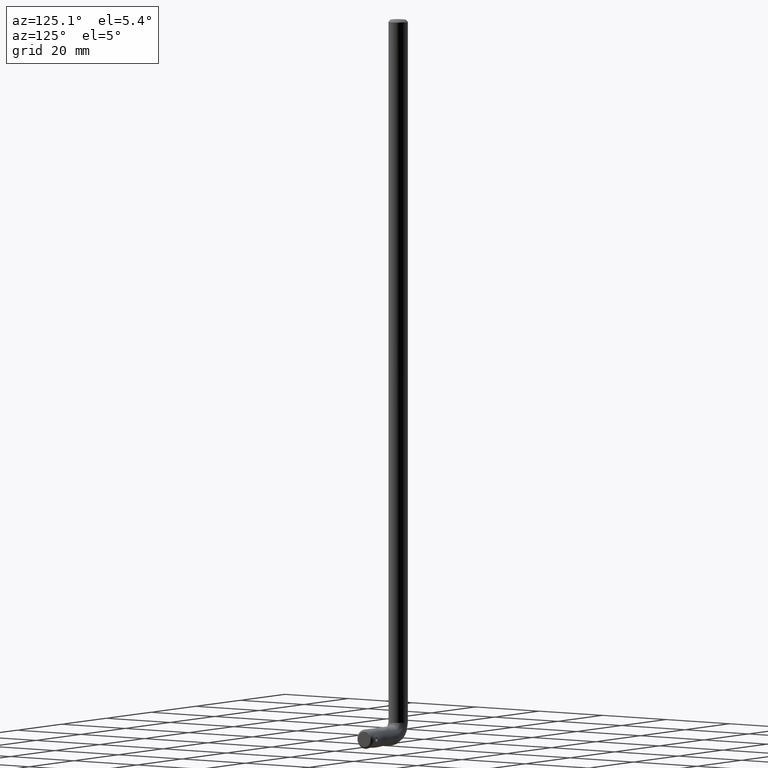
[diagram: clean part render]
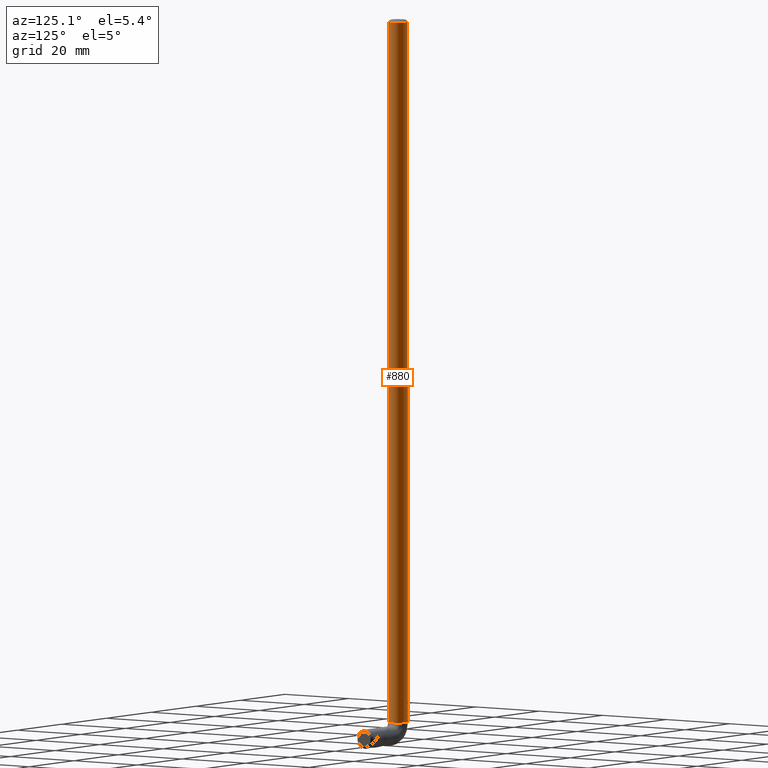
[diagram: same view with one face highlighted and labeled with its STEP entity id]
A machine part, auxiliary view. The second image highlights one B-rep face of the part: STEP entity #880.
In plain terms, the highlighted face is a freeform B-spline surface patch.
Its self-contained STEP definition (entity closure, byte-faithful):
#62=CARTESIAN_POINT('',(0.310320005373382,2.480665534564552,-0.500000000022274));
#63=VERTEX_POINT('',#62);
#64=CARTESIAN_POINT('',(2.500000000000000,0.0,-0.500000000000000));
#65=VERTEX_POINT('',#64);
#66=CARTESIAN_POINT('',(0.310320005373382,2.480665534564552,-0.500000000022274));
#67=CARTESIAN_POINT('',(2.500000000000001,2.206746500068885,-0.500000000000000));
#68=CARTESIAN_POINT('',(2.500000000000000,0.0,-0.500000000000000));
#76=(BOUNDED_CURVE()B_SPLINE_CURVE(2,(#66,#67,#68),.UNSPECIFIED.,.F.,.U.)B_SPLINE_CURVE_WITH_KNOTS((3,3),(0.271473928993958,0.500000000000000),.UNSPECIFIED.)CURVE()GEOMETRIC_REPRESENTATION_ITEM()RATIONAL_B_SPLINE_CURVE((0.954005430229587,0.732265053920995,1.0))REPRESENTATION_ITEM(''));
#77=EDGE_CURVE('',#63,#65,#76,.T.);
#118=CARTESIAN_POINT('',(-0.021816339028422,-2.499904807663032,-0.500000000005070));
#119=VERTEX_POINT('',#118);
#125=CARTESIAN_POINT('',(2.500000000000000,0.0,-0.500000000000000));
#126=CARTESIAN_POINT('',(2.500000000000000,-2.500000000000000,-0.500000000000000));
#127=CARTESIAN_POINT('',(0.0,-2.500000000000000,-0.500000000000000));
#128=CARTESIAN_POINT('',(-0.010908377334208,-2.500000000000000,-0.500000000000000));
#129=CARTESIAN_POINT('',(-0.021816339028422,-2.499904807663032,-0.500000000005070));
#137=(BOUNDED_CURVE()B_SPLINE_CURVE(2,(#125,#126,#127,#128,#129),.UNSPECIFIED.,.F.,.U.)B_SPLINE_CURVE_WITH_KNOTS((3,2,3),(0.500000000000000,0.750000000000000,0.751539894374788),.UNSPECIFIED.)CURVE()GEOMETRIC_REPRESENTATION_ITEM()RATIONAL_B_SPLINE_CURVE((1.0,0.707106781186548,1.0,0.998195901519742,0.996414028008295))REPRESENTATION_ITEM(''));
#138=EDGE_CURVE('',#65,#119,#137,.T.);
#165=CARTESIAN_POINT('',(-2.500000000000000,0.0,-0.500000000000000));
#166=VERTEX_POINT('',#165);
#167=CARTESIAN_POINT('',(-2.500000000000000,0.0,-0.500000000000000));
#168=CARTESIAN_POINT('',(-2.500000000000000,2.500000000000000,-0.500000000000000));
#169=CARTESIAN_POINT('',(0.0,2.500000000000000,-0.500000000000000));
#170=CARTESIAN_POINT('',(0.155762319006782,2.500000000000000,-0.500000000000000));
#171=CARTESIAN_POINT('',(0.310320005373382,2.480665534564552,-0.500000000022274));
#179=(BOUNDED_CURVE()B_SPLINE_CURVE(2,(#167,#168,#169,#170,#171),.UNSPECIFIED.,.F.,.U.)B_SPLINE_CURVE_WITH_KNOTS((3,2,3),(0.0,0.250000000000000,0.271473928993958),.UNSPECIFIED.)CURVE()GEOMETRIC_REPRESENTATION_ITEM()RATIONAL_B_SPLINE_CURVE((1.0,0.707106781186548,1.0,0.974841727265553,0.954005430229587))REPRESENTATION_ITEM(''));
#180=EDGE_CURVE('',#166,#63,#179,.T.);
#182=CARTESIAN_POINT('',(-2.062822166249766,-1.412361395121172,-0.499999999999993));
#183=VERTEX_POINT('',#182);
#184=CARTESIAN_POINT('',(-2.062822166249765,-1.412361395121172,-0.499999999999993));
#185=CARTESIAN_POINT('',(-2.500000000000001,-0.773842012504037,-0.500000000000000));
#186=CARTESIAN_POINT('',(-2.500000000000000,0.0,-0.500000000000000));
#194=(BOUNDED_CURVE()B_SPLINE_CURVE(2,(#184,#185,#186),.UNSPECIFIED.,.F.,.U.)B_SPLINE_CURVE_WITH_KNOTS((3,3),(0.902999117471550,1.0),.UNSPECIFIED.)CURVE()GEOMETRIC_REPRESENTATION_ITEM()RATIONAL_B_SPLINE_CURVE((0.860901032466181,0.886356397153987,1.0))REPRESENTATION_ITEM(''));
#195=EDGE_CURVE('',#183,#166,#194,.T.);
#197=CARTESIAN_POINT('',(-0.541099035157201,-2.440740017730677,-0.499999999999994));
#198=VERTEX_POINT('',#197);
#212=CARTESIAN_POINT('',(-0.021816339028422,-2.499904807663032,-0.500000000005070));
#213=CARTESIAN_POINT('',(-0.284566922393904,-2.497611817995611,-0.500000000000000));
#214=CARTESIAN_POINT('',(-0.541099035157201,-2.440740017730676,-0.499999999999994));
#222=(BOUNDED_CURVE()B_SPLINE_CURVE(2,(#212,#213,#214),.UNSPECIFIED.,.F.,.U.)B_SPLINE_CURVE_WITH_KNOTS((3,3),(0.751539894374789,0.787040114712345),.UNSPECIFIED.)CURVE()GEOMETRIC_REPRESENTATION_ITEM()RATIONAL_B_SPLINE_CURVE((0.996414028008293,0.955335299943757,0.926068516232360))REPRESENTATION_ITEM(''));
#223=EDGE_CURVE('',#119,#198,#222,.T.);
#756=CARTESIAN_POINT('',(-2.062822166255599,-1.412361395112651,4.030000000176347));
#757=CARTESIAN_POINT('',(-2.675446570093242,-0.517593806449826,4.030000000176347));
#758=CARTESIAN_POINT('',(-2.440740017799833,0.541099034845257,4.030000000176347));
#759=CARTESIAN_POINT('',(-1.899640982954576,2.981839052645090,4.030000000176347));
#760=CARTESIAN_POINT('',(0.541099034845257,2.440740017799833,4.030000000176347));
#761=CARTESIAN_POINT('',(2.981839052645090,1.899640982954576,4.030000000176347));
#762=CARTESIAN_POINT('',(2.440740017799833,-0.541099034845257,4.030000000176347));
#763=CARTESIAN_POINT('',(1.899640982954576,-2.981839052645090,4.030000000176347));
#764=CARTESIAN_POINT('',(-0.541099034845257,-2.440740017799833,4.030000000176347));
#765=CARTESIAN_POINT('',(-2.062822166255599,-1.412361395112651,-186.343250007234470));
#766=CARTESIAN_POINT('',(-2.675446570093242,-0.517593806449826,-186.343250007234470));
#767=CARTESIAN_POINT('',(-2.440740017799833,0.541099034845257,-186.343250007234500));
#768=CARTESIAN_POINT('',(-1.899640982954576,2.981839052645090,-186.343250007234530));
#769=CARTESIAN_POINT('',(0.541099034845257,2.440740017799833,-186.343250007234500));
#770=CARTESIAN_POINT('',(2.981839052645090,1.899640982954576,-186.343250007234530));
#771=CARTESIAN_POINT('',(2.440740017799833,-0.541099034845257,-186.343250007234500));
#772=CARTESIAN_POINT('',(1.899640982954576,-2.981839052645090,-186.343250007234530));
#773=CARTESIAN_POINT('',(-0.541099034845257,-2.440740017799833,-186.343250007234500));
#781=(BOUNDED_SURFACE()B_SPLINE_SURFACE(2,1,((#756,#765),(#757,#766),(#758,#767),(#759,#768),(#760,#769),(#761,#770),(#762,#771),(#763,#772),(#764,#773)),.UNSPECIFIED.,.F.,.F.,.U.)B_SPLINE_SURFACE_WITH_KNOTS((3,2,2,2,3),(2,2),(0.0,2.153910524340093,6.296046148071042,10.438181771801990,14.580317395532941),(0.0,190.373250007410890),.UNSPECIFIED.)GEOMETRIC_REPRESENTATION_ITEM()RATIONAL_B_SPLINE_SURFACE(((0.853787705168325,0.853787705168325),(0.847695526217005,0.847695526217005),(1.0,1.0),(0.707106781186548,0.707106781186548),(1.0,1.0),(0.707106781186548,0.707106781186548),(1.0,1.0),(0.707106781186548,0.707106781186548),(1.0,1.0)))REPRESENTATION_ITEM('')SURFACE());
#782=CARTESIAN_POINT('',(-2.500000000000000,0.0,-181.699999999999990));
#783=VERTEX_POINT('',#782);
#784=CARTESIAN_POINT('',(-2.062822166243914,-1.412361395129719,-181.699999999999990));
#785=VERTEX_POINT('',#784);
#786=CARTESIAN_POINT('',(-2.500000000000000,0.0,-181.699999999999990));
#787=CARTESIAN_POINT('',(-2.499999999999999,-0.773842012515388,-181.699999999999990));
#788=CARTESIAN_POINT('',(-2.062822166243914,-1.412361395129719,-181.699999999999930));
#796=(BOUNDED_CURVE()B_SPLINE_CURVE(2,(#786,#787,#788),.UNSPECIFIED.,.F.,.U.)B_SPLINE_CURVE_WITH_KNOTS((3,3),(0.0,0.097000882529711),.UNSPECIFIED.)CURVE()GEOMETRIC_REPRESENTATION_ITEM()RATIONAL_B_SPLINE_CURVE((1.0,0.886356397152509,0.860901032465519))REPRESENTATION_ITEM(''));
#797=EDGE_CURVE('',#783,#785,#796,.T.);
#798=ORIENTED_EDGE('',*,*,#797,.T.);
#799=CARTESIAN_POINT('',(-2.062822166249766,-1.412361395121172,-0.499999999999993));
#800=CARTESIAN_POINT('',(-2.062822166243914,-1.412361395129719,-181.699999999999990));
#801=QUASI_UNIFORM_CURVE('',1,(#799,#800),.UNSPECIFIED.,.F.,.U.);
#802=EDGE_CURVE('',#183,#785,#801,.T.);
#803=ORIENTED_EDGE('',*,*,#802,.F.);
#804=ORIENTED_EDGE('',*,*,#195,.T.);
#805=ORIENTED_EDGE('',*,*,#180,.T.);
#806=ORIENTED_EDGE('',*,*,#77,.T.);
#807=ORIENTED_EDGE('',*,*,#138,.T.);
#808=ORIENTED_EDGE('',*,*,#223,.T.);
#809=CARTESIAN_POINT('',(-0.541099253055557,-2.440739969423754,-181.699999999999990));
#810=VERTEX_POINT('',#809);
#811=CARTESIAN_POINT('',(-0.541099035157201,-2.440740017730677,-0.499999999999994));
#812=CARTESIAN_POINT('',(-0.541099253055557,-2.440739969423754,-181.699999999999990));
#813=QUASI_UNIFORM_CURVE('',1,(#811,#812),.UNSPECIFIED.,.F.,.U.);
#814=EDGE_CURVE('',#198,#810,#813,.T.);
#815=ORIENTED_EDGE('',*,*,#814,.T.);
#816=CARTESIAN_POINT('',(2.262067629778159,-1.064448231859974,-181.700000007053690));
#817=VERTEX_POINT('',#816);
#818=CARTESIAN_POINT('',(-0.541099253055557,-2.440739969423753,-181.699999999999900));
#819=CARTESIAN_POINT('',(-0.273794755397243,-2.500000000000000,-181.699999999999990));
#820=CARTESIAN_POINT('',(0.0,-2.500000000000000,-181.699999999999990));
#821=CARTESIAN_POINT('',(1.586548239291224,-2.499999999999999,-181.700000000000020));
#822=CARTESIAN_POINT('',(2.262067629778159,-1.064448231859974,-181.700000007053690));
#830=(BOUNDED_CURVE()B_SPLINE_CURVE(2,(#818,#819,#820,#821,#822),.UNSPECIFIED.,.F.,.U.)B_SPLINE_CURVE_WITH_KNOTS((3,2,3),(0.212959856057537,0.250000000000000,0.427668464231308),.UNSPECIFIED.)CURVE()GEOMETRIC_REPRESENTATION_ITEM()RATIONAL_B_SPLINE_CURVE((0.926068468037087,0.956604772061513,1.0,0.791848446518598,0.879552627712409))REPRESENTATION_ITEM(''));
#831=EDGE_CURVE('',#810,#817,#830,.T.);
#832=ORIENTED_EDGE('',*,*,#831,.T.);
#833=CARTESIAN_POINT('',(2.500000000000000,0.0,-181.699999999999990));
#834=VERTEX_POINT('',#833);
#835=CARTESIAN_POINT('',(2.262067629778159,-1.064448231859974,-181.700000007053720));
#836=CARTESIAN_POINT('',(2.500000000000000,-0.558816210662919,-181.699999999999930));
#837=CARTESIAN_POINT('',(2.500000000000000,0.0,-181.699999999999990));
#845=(BOUNDED_CURVE()B_SPLINE_CURVE(2,(#835,#836,#837),.UNSPECIFIED.,.F.,.U.)B_SPLINE_CURVE_WITH_KNOTS((3,3),(0.427668464231308,0.500000000000000),.UNSPECIFIED.)CURVE()GEOMETRIC_REPRESENTATION_ITEM()RATIONAL_B_SPLINE_CURVE((0.879552627712409,0.915258334667949,1.0))REPRESENTATION_ITEM(''));
#846=EDGE_CURVE('',#817,#834,#845,.T.);
#847=ORIENTED_EDGE('',*,*,#846,.T.);
#848=CARTESIAN_POINT('',(0.796140923577682,2.369843798608860,-181.700000006730510));
#849=VERTEX_POINT('',#848);
#850=CARTESIAN_POINT('',(2.500000000000000,0.0,-181.699999999999990));
#851=CARTESIAN_POINT('',(2.500000000000000,1.797438162283889,-181.700000000000020));
#852=CARTESIAN_POINT('',(0.796140923577682,2.369843798608860,-181.700000006730480));
#860=(BOUNDED_CURVE()B_SPLINE_CURVE(2,(#850,#851,#852),.UNSPECIFIED.,.F.,.U.)B_SPLINE_CURVE_WITH_KNOTS((3,3),(0.500000000000000,0.695865557088404),.UNSPECIFIED.)CURVE()GEOMETRIC_REPRESENTATION_ITEM()RATIONAL_B_SPLINE_CURVE((1.0,0.770529226118750,0.900621819931565))REPRESENTATION_ITEM(''));
#861=EDGE_CURVE('',#834,#849,#860,.T.);
#862=ORIENTED_EDGE('',*,*,#861,.T.);
#863=CARTESIAN_POINT('',(0.796140923577682,2.369843798608860,-181.700000006730530));
#864=CARTESIAN_POINT('',(0.408709684226570,2.500000000000000,-181.699999999999990));
#865=CARTESIAN_POINT('',(0.0,2.500000000000000,-181.699999999999990));
#866=CARTESIAN_POINT('',(-2.500000000000000,2.500000000000000,-181.700000000000020));
#867=CARTESIAN_POINT('',(-2.500000000000000,0.0,-181.699999999999990));
#875=(BOUNDED_CURVE()B_SPLINE_CURVE(2,(#863,#864,#865,#866,#867),.UNSPECIFIED.,.F.,.U.)B_SPLINE_CURVE_WITH_KNOTS((3,2,3),(0.695865557088404,0.750000000000000,1.0),.UNSPECIFIED.)CURVE()GEOMETRIC_REPRESENTATION_ITEM()RATIONAL_B_SPLINE_CURVE((0.900621819931566,0.936577555067799,1.0,0.707106781186548,1.0))REPRESENTATION_ITEM(''));
#876=EDGE_CURVE('',#849,#783,#875,.T.);
#877=ORIENTED_EDGE('',*,*,#876,.T.);
#878=EDGE_LOOP('',(#798,#803,#804,#805,#806,#807,#808,#815,#832,#847,#862,#877));
#879=FACE_OUTER_BOUND('',#878,.T.);
#880=ADVANCED_FACE('',(#879),#781,.T.);